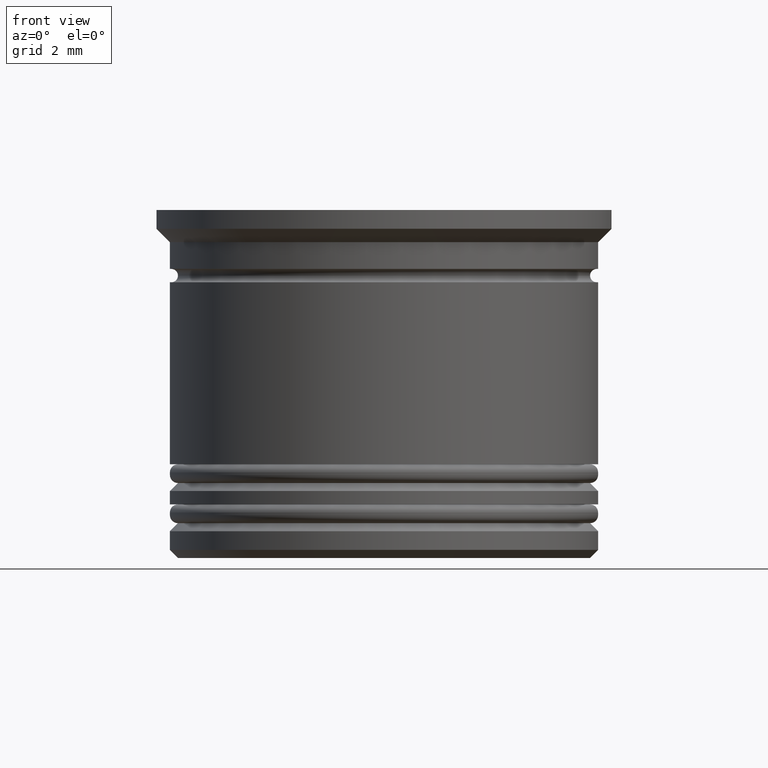
[diagram: clean part render]
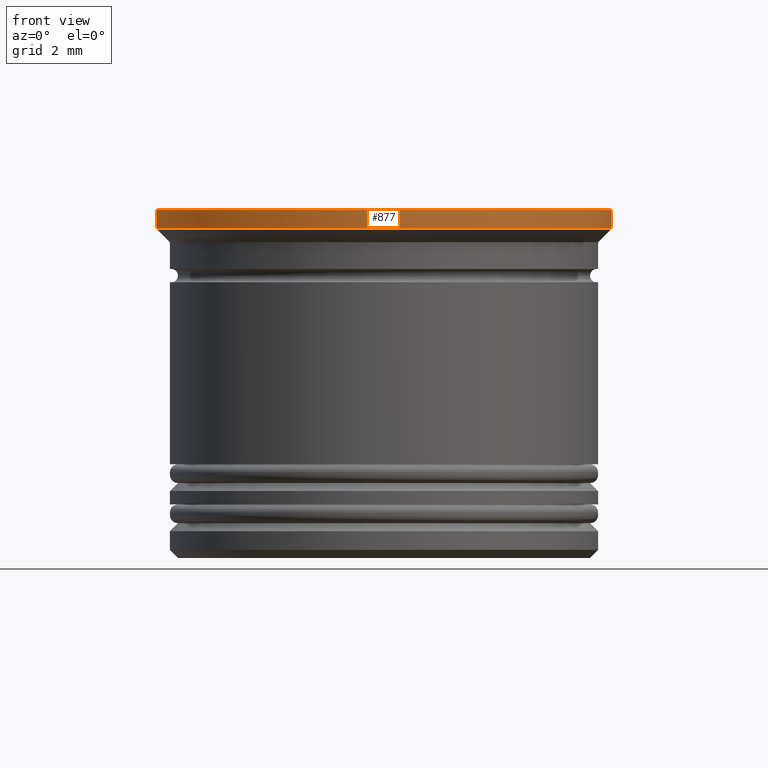
[diagram: same view with one face highlighted and labeled with its STEP entity id]
A machine part, front view. The second image highlights one B-rep face of the part: STEP entity #877.
In plain terms, the highlighted cylindrical surface (partial cylindrical patch) has radius 8.5 mm, axis along (-0, -0, 1).
Its self-contained STEP definition (entity closure, byte-faithful):
#48 = DIRECTION ( 'NONE',  ( -0.000000000000000000, -0.000000000000000000, 1.000000000000000000 ) ) ;
#138 = EDGE_CURVE ( 'NONE', #1928, #306, #403, .T. ) ;
#175 = VECTOR ( 'NONE', #234, 1000.000000000000000 ) ;
#185 = EDGE_CURVE ( 'NONE', #1369, #1664, #394, .T. ) ;
#234 = DIRECTION ( 'NONE',  ( -0.000000000000000000, -0.000000000000000000, 1.000000000000000000 ) ) ;
#306 = VERTEX_POINT ( 'NONE', #1822 ) ;
#394 = LINE ( 'NONE', #1499, #1553 ) ;
#403 = LINE ( 'NONE', #1490, #175 ) ;
#414 = DIRECTION ( 'NONE',  ( -0.000000000000000000, -0.000000000000000000, 1.000000000000000000 ) ) ;
#455 = CARTESIAN_POINT ( 'NONE',  ( -8.500000000000000000, 1.040949779275250140E-15, 0.000000000000000000 ) ) ;
#518 = CIRCLE ( 'NONE', #1641, 8.500000000000000000 ) ;
#538 = DIRECTION ( 'NONE',  ( 1.000000000000000000, 0.000000000000000000, 0.000000000000000000 ) ) ;
#791 = EDGE_CURVE ( 'NONE', #1369, #1928, #1897, .T. ) ;
#877 = ADVANCED_FACE ( 'NONE', ( #1424 ), #1295, .T. ) ;
#918 = EDGE_LOOP ( 'NONE', ( #1330, #1100, #938, #1018 ) ) ;
#938 = ORIENTED_EDGE ( 'NONE', *, *, #138, .T. ) ;
#946 = DIRECTION ( 'NONE',  ( -1.000000000000000000, 0.000000000000000000, 0.000000000000000000 ) ) ;
#1018 = ORIENTED_EDGE ( 'NONE', *, *, #1893, .F. ) ;
#1019 = AXIS2_PLACEMENT_3D ( 'NONE', #1757, #48, #946 ) ;
#1035 = CARTESIAN_POINT ( 'NONE',  ( 8.500000000000000000, 0.000000000000000000, -0.6999999999999952927 ) ) ;
#1100 = ORIENTED_EDGE ( 'NONE', *, *, #791, .T. ) ;
#1118 = CARTESIAN_POINT ( 'NONE',  ( 0.000000000000000000, 0.000000000000000000, 0.000000000000000000 ) ) ;
#1199 = DIRECTION ( 'NONE',  ( 1.000000000000000000, 0.000000000000000000, 0.000000000000000000 ) ) ;
#1233 = DIRECTION ( 'NONE',  ( -0.000000000000000000, -0.000000000000000000, 1.000000000000000000 ) ) ;
#1249 = AXIS2_PLACEMENT_3D ( 'NONE', #1118, #1736, #538 ) ;
#1295 = CYLINDRICAL_SURFACE ( 'NONE', #1249, 8.500000000000000000 ) ;
#1330 = ORIENTED_EDGE ( 'NONE', *, *, #185, .F. ) ;
#1369 = VERTEX_POINT ( 'NONE', #1608 ) ;
#1424 = FACE_OUTER_BOUND ( 'NONE', #918, .T. ) ;
#1490 = CARTESIAN_POINT ( 'NONE',  ( 8.500000000000000000, 0.000000000000000000, 0.000000000000000000 ) ) ;
#1499 = CARTESIAN_POINT ( 'NONE',  ( -8.500000000000000000, 1.040949779275250140E-15, 0.000000000000000000 ) ) ;
#1553 = VECTOR ( 'NONE', #414, 1000.000000000000000 ) ;
#1608 = CARTESIAN_POINT ( 'NONE',  ( -8.500000000000000000, 1.040949779275250140E-15, -0.6999999999999952927 ) ) ;
#1641 = AXIS2_PLACEMENT_3D ( 'NONE', #1674, #1233, #1199 ) ;
#1664 = VERTEX_POINT ( 'NONE', #455 ) ;
#1674 = CARTESIAN_POINT ( 'NONE',  ( 0.000000000000000000, 0.000000000000000000, 0.000000000000000000 ) ) ;
#1736 = DIRECTION ( 'NONE',  ( -0.000000000000000000, -0.000000000000000000, 1.000000000000000000 ) ) ;
#1757 = CARTESIAN_POINT ( 'NONE',  ( 0.000000000000000000, 0.000000000000000000, -0.6999999999999952927 ) ) ;
#1822 = CARTESIAN_POINT ( 'NONE',  ( 8.500000000000000000, 0.000000000000000000, 0.000000000000000000 ) ) ;
#1893 = EDGE_CURVE ( 'NONE', #1664, #306, #518, .T. ) ;
#1897 = CIRCLE ( 'NONE', #1019, 8.500000000000000000 ) ;
#1928 = VERTEX_POINT ( 'NONE', #1035 ) ;